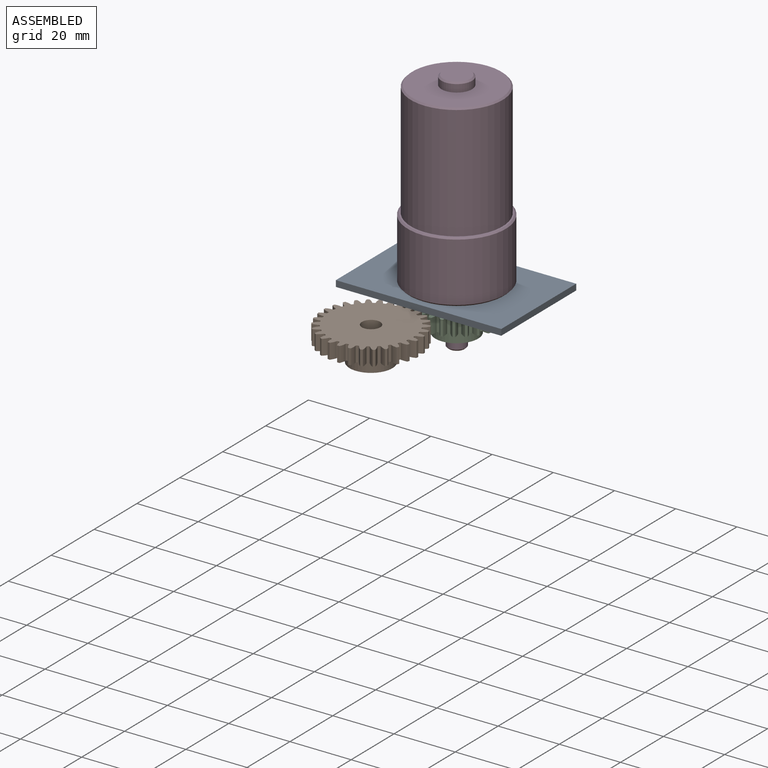
[diagram: assembled view]
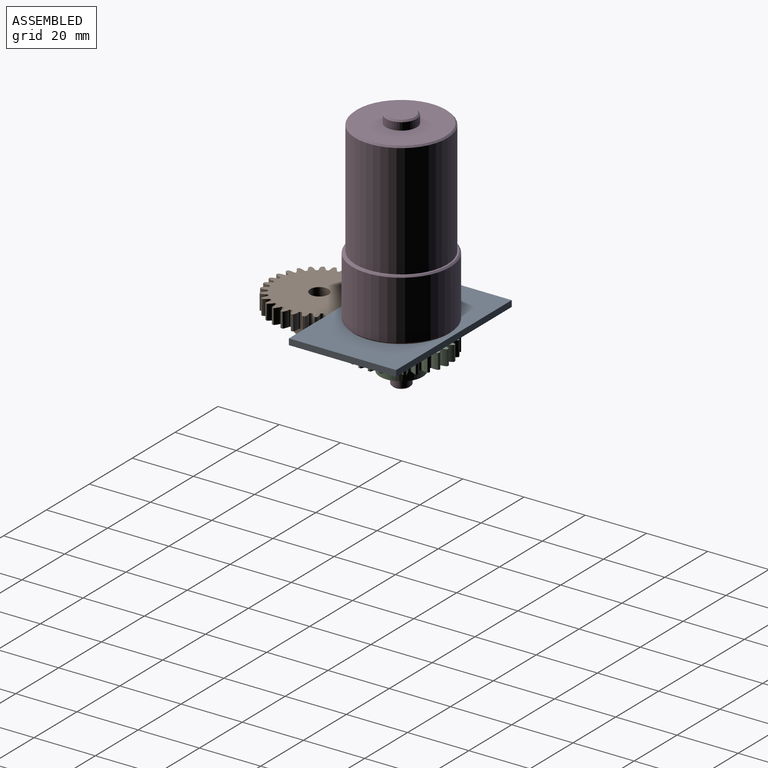
[diagram: assembled view, second angle]
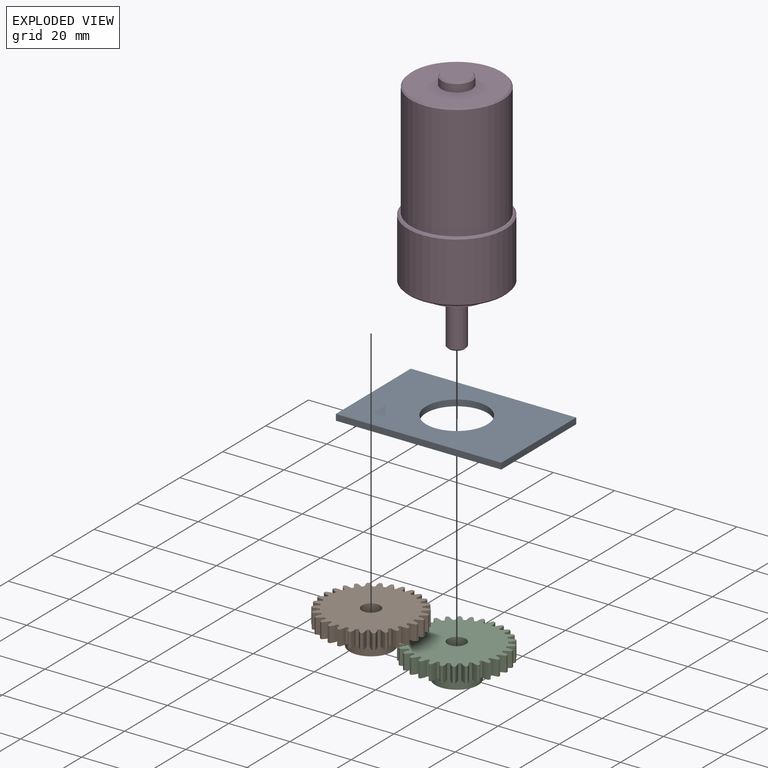
[diagram: exploded view]
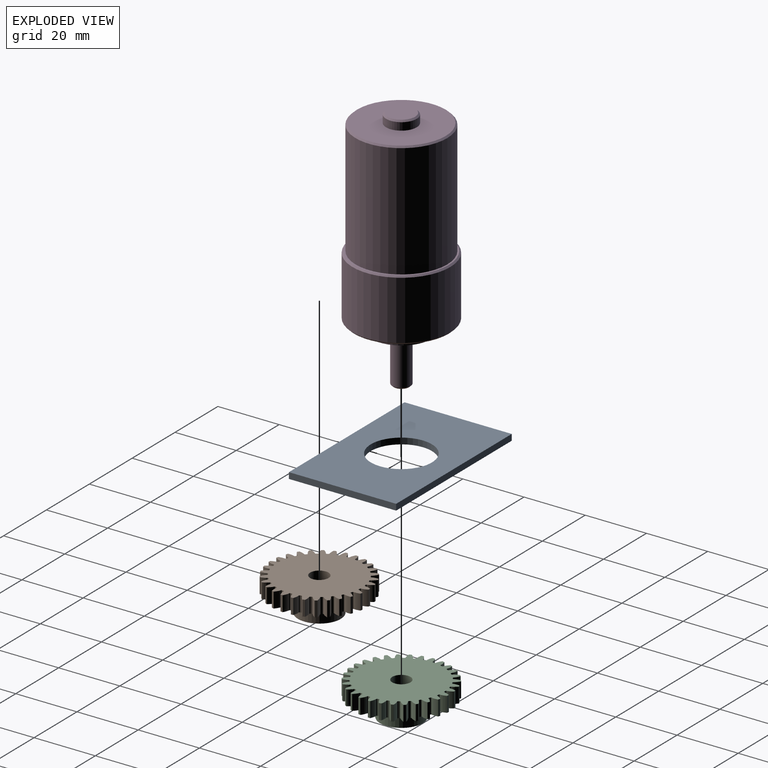
[diagram: exploded view, second angle]
ASSEMBLY  parts=4 mates=2
PART A: 7 faces, bbox 54x35x2 mm
  f0: plane 54x2mm, normal (0,-1,0), area 108mm2, adj f1,f3,f5,f6
  f1: plane 35x2mm, normal (1,0,0), area 70mm2, adj f0,f2,f5,f6
  f2: plane 54x2mm, normal (0,1,0), area 108mm2, adj f1,f3,f5,f6
  f3: plane 35x2mm, normal (-1,0,0), area 70mm2, adj f0,f2,f5,f6
  f4: cylinder r=10mm len=20mm, axis (0,0,1), area 125.7mm2, adj f5,f6
  f5: plane 54x35mm, normal (0,0,-1), area 1575.8mm2, adj f0,f1,f2,f3,f4
  f6: plane 54x35mm, normal (0,0,1), area 1575.8mm2, adj f0,f1,f2,f3,f4
PART B: 185 faces, bbox 31.9x11x32 mm
  f0: cylinder r=16mm len=5mm, axis (0,1,0), area 3.7mm2, adj f29,f32,f173,f180
  f1: cylinder r=16mm len=5mm, axis (0,1,0), area 3.7mm2, adj f29,f32,f168,f175
  f2: cylinder r=16mm len=5mm, axis (0,1,0), area 3.7mm2, adj f29,f32,f163,f170
  f3: cylinder r=16mm len=5mm, axis (0,1,0), area 3.7mm2, adj f29,f32,f153,f165
  f4: cylinder r=16mm len=5mm, axis (0,1,0), area 3.7mm2, adj f29,f32,f148,f160
  f5: cylinder r=16mm len=5mm, axis (0,1,0), area 3.7mm2, adj f29,f32,f155,f158
  f6: cylinder r=16mm len=5mm, axis (0,1,0), area 3.7mm2, adj f29,f32,f143,f150
  f7: cylinder r=16mm len=5mm, axis (0,1,0), area 3.7mm2, adj f29,f32,f33,f145
  f8: cylinder r=16mm len=5mm, axis (0,1,0), area 3.7mm2, adj f29,f32,f128,f140
  f9: cylinder r=16mm len=5mm, axis (0,1,0), area 3.7mm2, adj f29,f32,f135,f138
  f10: cylinder r=16mm len=5mm, axis (0,1,0), area 3.7mm2, adj f29,f32,f123,f130
  f11: cylinder r=16mm len=5mm, axis (0,1,0), area 3.7mm2, adj f29,f32,f125,f178
  f12: cylinder r=16mm len=5mm, axis (0,1,0), area 3.7mm2, adj f29,f32,f120,f133
  f13: cylinder r=16mm len=5mm, axis (0,1,0), area 3.7mm2, adj f29,f32,f115,f118
  f14: cylinder r=16mm len=5mm, axis (0,1,0), area 3.7mm2, adj f29,f32,f110,f113
  f15: cylinder r=16mm len=5mm, axis (0,1,0), area 3.7mm2, adj f29,f32,f105,f108
  f16: cylinder r=16mm len=5mm, axis (0,1,0), area 3.7mm2, adj f29,f32,f88,f100
  f17: cylinder r=16mm len=5mm, axis (0,1,0), area 3.7mm2, adj f29,f32,f95,f98
  f18: cylinder r=16mm len=5mm, axis (0,1,0), area 3.7mm2, adj f29,f32,f83,f90
  f19: cylinder r=16mm len=5mm, axis (0,1,0), area 3.7mm2, adj f29,f32,f85,f103
  f20: cylinder r=16mm len=5mm, axis (0,1,0), area 3.7mm2, adj f29,f32,f80,f93
  f21: cylinder r=16mm len=5mm, axis (0,1,0), area 3.7mm2, adj f29,f32,f75,f78
  f22: cylinder r=16mm len=5mm, axis (0,1,0), area 3.7mm2, adj f29,f32,f70,f73
  f23: cylinder r=16mm len=5mm, axis (0,1,0), area 3.7mm2, adj f29,f32,f65,f68
  f24: cylinder r=16mm len=5mm, axis (0,1,0), area 3.7mm2, adj f29,f32,f53,f60
  f25: cylinder r=16mm len=5mm, axis (0,1,0), area 3.7mm2, adj f29,f32,f43,f55
  f26: cylinder r=16mm len=5mm, axis (0,1,0), area 3.7mm2, adj f29,f32,f50,f63
  f27: cylinder r=16mm len=5mm, axis (0,1,0), area 3.7mm2, adj f29,f32,f45,f48
  f28: cylinder r=16mm len=5mm, axis (0,1,0), area 3.7mm2, adj f29,f32,f40,f58
  f29: plane 32x31.9mm, normal (0,-1,0), area 545mm2, adj f0,f1,f2,f3,f4,f5,f6,f7
  f30: cylinder r=3mm len=11mm, axis (0,1,0), area 207.3mm2, adj f32,f184
  f31: cylinder r=16mm len=5mm, axis (0,1,0), area 3.7mm2, adj f29,f32,f35,f38
  f32: plane 32x31.9mm, normal (0,1,0), area 670.7mm2, adj f0,f1,f2,f3,f4,f5,f6,f7
  f33: extruded ~5x1.85mm, area 10.1mm2, adj f7,f29,f32,f36
  f34: cylinder r=13.75mm len=5mm, axis (0,1,0), area 1.6mm2, adj f29,f32,f36,f37
  f35: extruded ~5x1.85mm, area 10.1mm2, adj f29,f31,f32,f37
  f36: cylinder r=0.37mm len=5mm, axis (0,1,0), area 2.8mm2, adj f29,f32,f33,f34
  f37: cylinder r=0.37mm len=5mm, axis (0,1,0), area 2.8mm2, adj f29,f32,f34,f35
  f38: extruded ~5x1.97mm, area 10.1mm2, adj f29,f31,f32,f41
  f39: cylinder r=13.75mm len=5mm, axis (0,1,0), area 1.6mm2, adj f29,f32,f41,f42
  f40: extruded ~5x1.65mm, area 10.1mm2, adj f28,f29,f32,f42
  f41: cylinder r=0.37mm len=5mm, axis (0,1,0), area 2.8mm2, adj f29,f32,f38,f39
  f42: cylinder r=0.37mm len=5mm, axis (0,1,0), area 2.8mm2, adj f29,f32,f39,f40
  f43: extruded ~5x1.82mm, area 10.1mm2, adj f25,f29,f32,f46
  f44: cylinder r=13.75mm len=5mm, axis (0,1,0), area 1.6mm2, adj f29,f32,f46,f47
  f45: extruded ~5x1.9mm, area 10.1mm2, adj f27,f29,f32,f47
  f46: cylinder r=0.37mm len=5mm, axis (0,1,0), area 2.8mm2, adj f29,f32,f43,f44
  f47: cylinder r=0.37mm len=5mm, axis (0,1,0), area 2.8mm2, adj f29,f32,f44,f45
  f48: extruded ~5x1.6mm, area 10.1mm2, adj f27,f29,f32,f51
  f49: cylinder r=13.75mm len=5mm, axis (0,1,0), area 1.6mm2, adj f29,f32,f51,f52
  f50: extruded ~5x1.99mm, area 10.1mm2, adj f26,f29,f32,f52
  f51: cylinder r=0.37mm len=5mm, axis (0,1,0), area 2.8mm2, adj f29,f32,f48,f49
  f52: cylinder r=0.37mm len=5mm, axis (0,1,0), area 2.8mm2, adj f29,f32,f49,f50
  f53: extruded ~5x1.96mm, area 10.1mm2, adj f24,f29,f32,f56
  f54: cylinder r=13.75mm len=5mm, axis (0,1,0), area 1.6mm2, adj f29,f32,f56,f57
  f55: extruded ~5x1.72mm, area 10.1mm2, adj f25,f29,f32,f57
  f56: cylinder r=0.37mm len=5mm, axis (0,1,0), area 2.8mm2, adj f29,f32,f53,f54
  f57: cylinder r=0.37mm len=5mm, axis (0,1,0), area 2.8mm2, adj f29,f32,f54,f55
  f58: extruded ~5x2.01mm, area 10.1mm2, adj f28,f29,f32,f61
  f59: cylinder r=13.75mm len=5mm, axis (0,1,0), area 1.6mm2, adj f29,f32,f61,f62
  f60: extruded ~5x1.46mm, area 10.1mm2, adj f24,f29,f32,f62
  f61: cylinder r=0.37mm len=5mm, axis (0,1,0), area 2.8mm2, adj f29,f32,f58,f59
  f62: cylinder r=0.37mm len=5mm, axis (0,1,0), area 2.8mm2, adj f29,f32,f59,f60
  f63: extruded ~5x1.52mm, area 10.1mm2, adj f26,f29,f32,f66
  f64: cylinder r=13.75mm len=5mm, axis (0,1,0), area 1.6mm2, adj f29,f32,f66,f67
  f65: extruded ~5x2mm, area 10.1mm2, adj f23,f29,f32,f67
  f66: cylinder r=0.37mm len=5mm, axis (0,1,0), area 2.8mm2, adj f29,f32,f63,f64
  f67: cylinder r=0.37mm len=5mm, axis (0,1,0), area 2.8mm2, adj f29,f32,f64,f65
  f68: extruded ~5x1.76mm, area 10.1mm2, adj f23,f29,f32,f71
  f69: cylinder r=13.75mm len=5mm, axis (0,1,0), area 1.6mm2, adj f29,f32,f71,f72
  f70: extruded ~5x1.92mm, area 10.1mm2, adj f22,f29,f32,f72
  f71: cylinder r=0.37mm len=5mm, axis (0,1,0), area 2.8mm2, adj f29,f32,f68,f69
  f72: cylinder r=0.37mm len=5mm, axis (0,1,0), area 2.8mm2, adj f29,f32,f69,f70
  f73: extruded ~5x1.92mm, area 10.1mm2, adj f22,f29,f32,f76
  f74: cylinder r=13.75mm len=5mm, axis (0,1,0), area 1.6mm2, adj f29,f32,f76,f77
  f75: extruded ~5x1.76mm, area 10.1mm2, adj f21,f29,f32,f77
  f76: cylinder r=0.37mm len=5mm, axis (0,1,0), area 2.8mm2, adj f29,f32,f73,f74
  f77: cylinder r=0.37mm len=5mm, axis (0,1,0), area 2.8mm2, adj f29,f32,f74,f75
  f78: extruded ~5x2mm, area 10.1mm2, adj f21,f29,f32,f81
  f79: cylinder r=13.75mm len=5mm, axis (0,1,0), area 1.6mm2, adj f29,f32,f81,f82
  f80: extruded ~5x1.52mm, area 10.1mm2, adj f20,f29,f32,f82
  f81: cylinder r=0.37mm len=5mm, axis (0,1,0), area 2.8mm2, adj f29,f32,f78,f79
  f82: cylinder r=0.37mm len=5mm, axis (0,1,0), area 2.8mm2, adj f29,f32,f79,f80
  f83: extruded ~5x1.46mm, area 10.1mm2, adj f18,f29,f32,f86
  f84: cylinder r=13.75mm len=5mm, axis (0,1,0), area 1.6mm2, adj f29,f32,f86,f87
  f85: extruded ~5x2.01mm, area 10.1mm2, adj f19,f29,f32,f87
  f86: cylinder r=0.37mm len=5mm, axis (0,1,0), area 2.8mm2, adj f29,f32,f83,f84
  f87: cylinder r=0.37mm len=5mm, axis (0,1,0), area 2.8mm2, adj f29,f32,f84,f85
  f88: extruded ~5x1.72mm, area 10.1mm2, adj f16,f29,f32,f91
  f89: cylinder r=13.75mm len=5mm, axis (0,1,0), area 1.6mm2, adj f29,f32,f91,f92
  f90: extruded ~5x1.96mm, area 10.1mm2, adj f18,f29,f32,f92
  f91: cylinder r=0.37mm len=5mm, axis (0,1,0), area 2.8mm2, adj f29,f32,f88,f89
  f92: cylinder r=0.37mm len=5mm, axis (0,1,0), area 2.8mm2, adj f29,f32,f89,f90
  f93: extruded ~5x1.99mm, area 10.1mm2, adj f20,f29,f32,f96
  f94: cylinder r=13.75mm len=5mm, axis (0,1,0), area 1.6mm2, adj f29,f32,f96,f97
  f95: extruded ~5x1.6mm, area 10.1mm2, adj f17,f29,f32,f97
  f96: cylinder r=0.37mm len=5mm, axis (0,1,0), area 2.8mm2, adj f29,f32,f93,f94
  f97: cylinder r=0.37mm len=5mm, axis (0,1,0), area 2.8mm2, adj f29,f32,f94,f95
  f98: extruded ~5x1.9mm, area 10.1mm2, adj f17,f29,f32,f101
  f99: cylinder r=13.75mm len=5mm, axis (0,1,0), area 1.6mm2, adj f29,f32,f101,f102
  f100: extruded ~5x1.82mm, area 10.1mm2, adj f16,f29,f32,f102
  f101: cylinder r=0.37mm len=5mm, axis (0,1,0), area 2.8mm2, adj f29,f32,f98,f99
  f102: cylinder r=0.37mm len=5mm, axis (0,1,0), area 2.8mm2, adj f29,f32,f99,f100
  f103: extruded ~5x1.65mm, area 10.1mm2, adj f19,f29,f32,f106
  f104: cylinder r=13.75mm len=5mm, axis (0,1,0), area 1.6mm2, adj f29,f32,f106,f107
  f105: extruded ~5x1.97mm, area 10.1mm2, adj f15,f29,f32,f107
  f106: cylinder r=0.37mm len=5mm, axis (0,1,0), area 2.8mm2, adj f29,f32,f103,f104
  f107: cylinder r=0.37mm len=5mm, axis (0,1,0), area 2.8mm2, adj f29,f32,f104,f105
  f108: extruded ~5x1.85mm, area 10.1mm2, adj f15,f29,f32,f111
  f109: cylinder r=13.75mm len=5mm, axis (0,1,0), area 1.6mm2, adj f29,f32,f111,f112
  f110: extruded ~5x1.85mm, area 10.1mm2, adj f14,f29,f32,f112
  f111: cylinder r=0.37mm len=5mm, axis (0,1,0), area 2.8mm2, adj f29,f32,f108,f109
  f112: cylinder r=0.37mm len=5mm, axis (0,1,0), area 2.8mm2, adj f29,f32,f109,f110
  f113: extruded ~5x1.97mm, area 10.1mm2, adj f14,f29,f32,f116
  f114: cylinder r=13.75mm len=5mm, axis (0,1,0), area 1.6mm2, adj f29,f32,f116,f117
  f115: extruded ~5x1.65mm, area 10.1mm2, adj f13,f29,f32,f117
  f116: cylinder r=0.37mm len=5mm, axis (0,1,0), area 2.8mm2, adj f29,f32,f113,f114
  f117: cylinder r=0.37mm len=5mm, axis (0,1,0), area 2.8mm2, adj f29,f32,f114,f115
  f118: extruded ~5x2.01mm, area 10.1mm2, adj f13,f29,f32,f121
  f119: cylinder r=13.75mm len=5mm, axis (0,1,0), area 1.6mm2, adj f29,f32,f121,f122
  f120: extruded ~5x1.46mm, area 10.1mm2, adj f12,f29,f32,f122
  f121: cylinder r=0.37mm len=5mm, axis (0,1,0), area 2.8mm2, adj f29,f32,f118,f119
  f122: cylinder r=0.37mm len=5mm, axis (0,1,0), area 2.8mm2, adj f29,f32,f119,f120
  f123: extruded ~5x1.52mm, area 10.1mm2, adj f10,f29,f32,f126
  f124: cylinder r=13.75mm len=5mm, axis (0,1,0), area 1.6mm2, adj f29,f32,f126,f127
  f125: extruded ~5x2mm, area 10.1mm2, adj f11,f29,f32,f127
  f126: cylinder r=0.37mm len=5mm, axis (0,1,0), area 2.8mm2, adj f29,f32,f123,f124
  f127: cylinder r=0.37mm len=5mm, axis (0,1,0), area 2.8mm2, adj f29,f32,f124,f125
  f128: extruded ~5x1.6mm, area 10.1mm2, adj f8,f29,f32,f131
  f129: cylinder r=13.75mm len=5mm, axis (0,1,0), area 1.6mm2, adj f29,f32,f131,f132
  f130: extruded ~5x1.99mm, area 10.1mm2, adj f10,f29,f32,f132
  f131: cylinder r=0.37mm len=5mm, axis (0,1,0), area 2.8mm2, adj f29,f32,f128,f129
  f132: cylinder r=0.37mm len=5mm, axis (0,1,0), area 2.8mm2, adj f29,f32,f129,f130
  f133: extruded ~5x1.96mm, area 10.1mm2, adj f12,f29,f32,f136
  f134: cylinder r=13.75mm len=5mm, axis (0,1,0), area 1.6mm2, adj f29,f32,f136,f137
  f135: extruded ~5x1.72mm, area 10.1mm2, adj f9,f29,f32,f137
  f136: cylinder r=0.37mm len=5mm, axis (0,1,0), area 2.8mm2, adj f29,f32,f133,f134
  f137: cylinder r=0.37mm len=5mm, axis (0,1,0), area 2.8mm2, adj f29,f32,f134,f135
  f138: extruded ~5x1.82mm, area 10.1mm2, adj f9,f29,f32,f141
  f139: cylinder r=13.75mm len=5mm, axis (0,1,0), area 1.6mm2, adj f29,f32,f141,f142
  f140: extruded ~5x1.9mm, area 10.1mm2, adj f8,f29,f32,f142
  f141: cylinder r=0.37mm len=5mm, axis (0,1,0), area 2.8mm2, adj f29,f32,f138,f139
  f142: cylinder r=0.37mm len=5mm, axis (0,1,0), area 2.8mm2, adj f29,f32,f139,f140
  f143: extruded ~5x1.65mm, area 10.1mm2, adj f6,f29,f32,f146
  f144: cylinder r=13.75mm len=5mm, axis (0,1,0), area 1.6mm2, adj f29,f32,f146,f147
  f145: extruded ~5x1.97mm, area 10.1mm2, adj f7,f29,f32,f147
  f146: cylinder r=0.37mm len=5mm, axis (0,1,0), area 2.8mm2, adj f29,f32,f143,f144
  f147: cylinder r=0.37mm len=5mm, axis (0,1,0), area 2.8mm2, adj f29,f32,f144,f145
  f148: extruded ~5x1.46mm, area 10.1mm2, adj f4,f29,f32,f151
  f149: cylinder r=13.75mm len=5mm, axis (0,1,0), area 1.6mm2, adj f29,f32,f151,f152
  f150: extruded ~5x2.01mm, area 10.1mm2, adj f6,f29,f32,f152
  f151: cylinder r=0.37mm len=5mm, axis (0,1,0), area 2.8mm2, adj f29,f32,f148,f149
  f152: cylinder r=0.37mm len=5mm, axis (0,1,0), area 2.8mm2, adj f29,f32,f149,f150
  f153: extruded ~5x1.9mm, area 10.1mm2, adj f3,f29,f32,f156
  f154: cylinder r=13.75mm len=5mm, axis (0,1,0), area 1.6mm2, adj f29,f32,f156,f157
  f155: extruded ~5x1.82mm, area 10.1mm2, adj f5,f29,f32,f157
  f156: cylinder r=0.37mm len=5mm, axis (0,1,0), area 2.8mm2, adj f29,f32,f153,f154
  f157: cylinder r=0.37mm len=5mm, axis (0,1,0), area 2.8mm2, adj f29,f32,f154,f155
  f158: extruded ~5x1.72mm, area 10.1mm2, adj f5,f29,f32,f161
  f159: cylinder r=13.75mm len=5mm, axis (0,1,0), area 1.6mm2, adj f29,f32,f161,f162
  f160: extruded ~5x1.96mm, area 10.1mm2, adj f4,f29,f32,f162
  f161: cylinder r=0.37mm len=5mm, axis (0,1,0), area 2.8mm2, adj f29,f32,f158,f159
  f162: cylinder r=0.37mm len=5mm, axis (0,1,0), area 2.8mm2, adj f29,f32,f159,f160
  f163: extruded ~5x1.99mm, area 10.1mm2, adj f2,f29,f32,f166
  f164: cylinder r=13.75mm len=5mm, axis (0,1,0), area 1.6mm2, adj f29,f32,f166,f167
  f165: extruded ~5x1.6mm, area 10.1mm2, adj f3,f29,f32,f167
  f166: cylinder r=0.37mm len=5mm, axis (0,1,0), area 2.8mm2, adj f29,f32,f163,f164
  f167: cylinder r=0.37mm len=5mm, axis (0,1,0), area 2.8mm2, adj f29,f32,f164,f165
  f168: extruded ~5x2mm, area 10.1mm2, adj f1,f29,f32,f171
  f169: cylinder r=13.75mm len=5mm, axis (0,1,0), area 1.6mm2, adj f29,f32,f171,f172
  f170: extruded ~5x1.52mm, area 10.1mm2, adj f2,f29,f32,f172
  f171: cylinder r=0.37mm len=5mm, axis (0,1,0), area 2.8mm2, adj f29,f32,f168,f169
  f172: cylinder r=0.37mm len=5mm, axis (0,1,0), area 2.8mm2, adj f29,f32,f169,f170
  f173: extruded ~5x1.92mm, area 10.1mm2, adj f0,f29,f32,f176
  f174: cylinder r=13.75mm len=5mm, axis (0,1,0), area 1.6mm2, adj f29,f32,f176,f177
  f175: extruded ~5x1.76mm, area 10.1mm2, adj f1,f29,f32,f177
  f176: cylinder r=0.37mm len=5mm, axis (0,1,0), area 2.8mm2, adj f29,f32,f173,f174
  f177: cylinder r=0.37mm len=5mm, axis (0,1,0), area 2.8mm2, adj f29,f32,f174,f175
  f178: extruded ~5x1.76mm, area 10.1mm2, adj f11,f29,f32,f181
  f179: cylinder r=13.75mm len=5mm, axis (0,1,0), area 1.6mm2, adj f29,f32,f181,f182
  f180: extruded ~5x1.92mm, area 10.1mm2, adj f0,f29,f32,f182
  f181: cylinder r=0.37mm len=5mm, axis (0,1,0), area 2.8mm2, adj f29,f32,f178,f179
  f182: cylinder r=0.37mm len=5mm, axis (0,1,0), area 2.8mm2, adj f29,f32,f179,f180
  f183: cylinder r=7mm len=14mm, axis (0,1,0), area 263.9mm2, adj f29,f184
  f184: plane 14x14mm, normal (0,-1,0), area 125.7mm2, adj f30,f183
PART C: same geometry as B
PART D: 16 faces, bbox 32x80.4x32 mm
  f0: cylinder r=3mm len=15.8mm, axis (0,1,0), area 297.8mm2, adj f1,f11
  f1: plane 20x20mm, normal (0,1,0), area 285.9mm2, adj f0,f2
  f2: cylinder r=10mm len=20mm, axis (0,1,0), area 188.5mm2, adj f1,f3
  f3: plane 31x31mm, normal (0,1,0), area 440.6mm2, adj f2,f15
  f4: cylinder r=16mm len=32mm, axis (0,1,0), area 1940.2mm2, adj f12,f15
  f5: plane 31x31mm, normal (0,-1,0), area 47.9mm2, adj f6,f12
  f6: cylinder r=15mm len=37.3mm, axis (0,1,0), area 3515.4mm2, adj f5,f13
  f7: plane 29x29mm, normal (0,-1,0), area 582mm2, adj f8,f13
  f8: cylinder r=5mm len=10mm, axis (0,1,0), area 78.5mm2, adj f7,f14
  f9: plane 9x9mm, normal (0,-1,0), area 63.6mm2, adj f14
  f10: plane 5x5mm, normal (0,1,0), area 19.6mm2, adj f11
  f11: cone r=2.5mm half-angle=45deg, axis (0,-1,0), area 12.2mm2, adj f0,f10
  f12: cone r=16mm half-angle=45deg, axis (0,1,0), area 70mm2, adj f4,f5
  f13: cone r=15mm half-angle=45deg, axis (0,1,0), area 65.5mm2, adj f6,f7
  f14: cone r=5mm half-angle=45deg, axis (0,1,0), area 21.1mm2, adj f8,f9
  f15: cone r=15.5mm half-angle=45deg, axis (0,-1,0), area 70mm2, adj f3,f4
PLACE A rot(axis=(0,0,1),0deg) t=(-64.06,-167.88,6.43)mm
PLACE B rot(axis=(0.09,-0.7,-0.7),170.3deg) t=(-70.29,-156.01,3.93)mm
PLACE C rot(axis=(0.99,0.07,0.07),90.3deg) t=(-64.09,-124.88,2.43)mm
PLACE D rot(axis=(-1,0,0),90deg) t=(-64.09,-124.88,-12.87)mm
MATE revolute C.f0 <-> D.f0  axis (0,0,1) through (-64.09,-124.88,2.43)mm
MATE fastened A.f4 <-> D.f0  axis (0,0,1) through (-64.09,-124.88,6.43)mm
